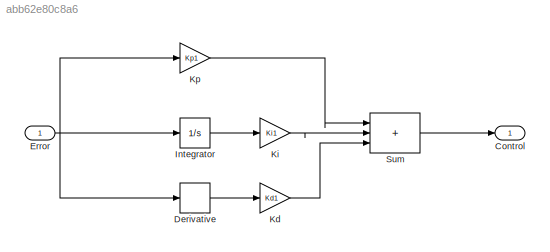
MODEL slx_abb62e80c8a6
KIND model
CONFIG AbsTol = auto
CONFIG EnableMultiTasking = off
CONFIG FixedStep = auto
CONFIG MaxStep = auto
CONFIG MinStep = auto
CONFIG RelTol = 1e-3
CONFIG SampleTimeConstraint = Unconstrained
CONFIG SolverName = VariableStepAuto
CONFIG StartTime = 0.0
CONFIG StopTime = 10.0
BLOCK [Outport] Control
BLOCK [Derivative] Derivative
BLOCK [Inport] Error
BLOCK [Integrator] Integrator
BLOCK [Gain] Kd
  Gain = Kd1
BLOCK [Gain] Ki
  Gain = Ki1
BLOCK [Gain] Kp
  Gain = Kp1
BLOCK [Sum] Sum
  IconShape = rectangular
  Inputs = |+++
LINE Derivative:1 -> Kd:1
NET Error:1 -> Derivative:1, Integrator:1, Kp:1
LINE Integrator:1 -> Ki:1
LINE Kd:1 -> Sum:3
LINE Ki:1 -> Sum:2
LINE Kp:1 -> Sum:1
LINE Sum:1 -> Control:1
note: NET lines group one-source signal fan-out (src -> all destinations, sorted); 1:1 wires keep LINE
